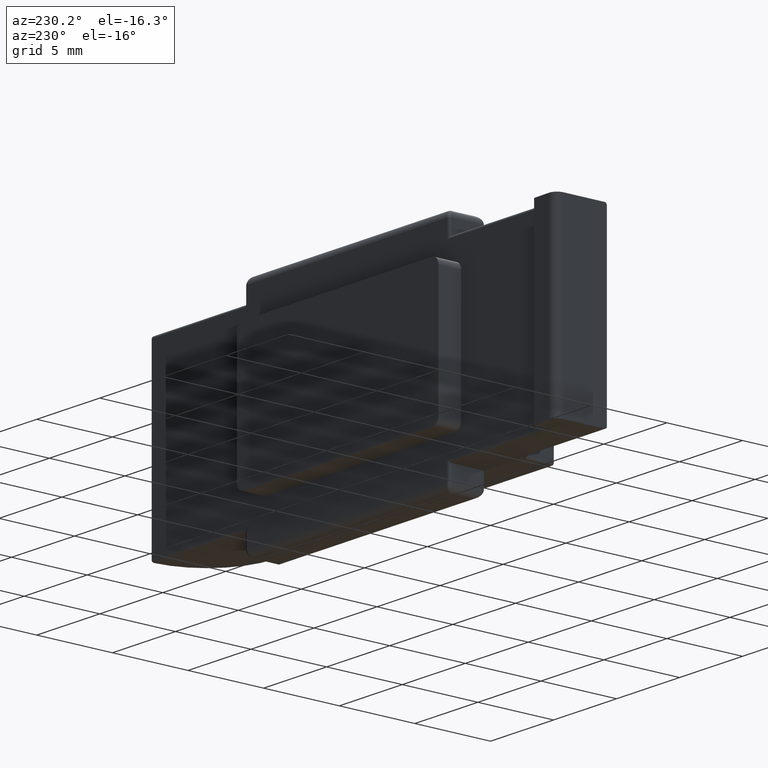
[diagram: clean part render]
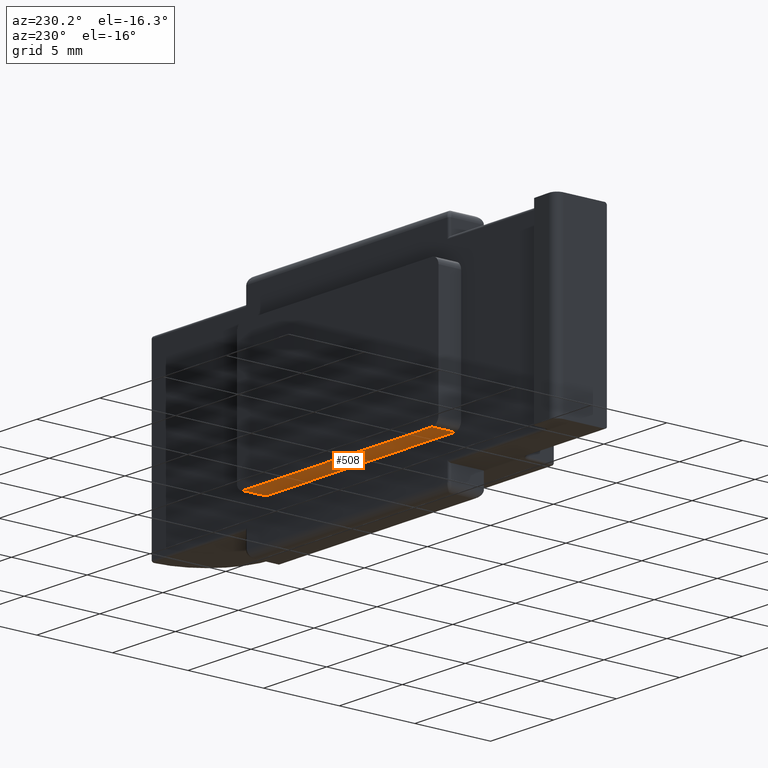
[diagram: same view with one face highlighted and labeled with its STEP entity id]
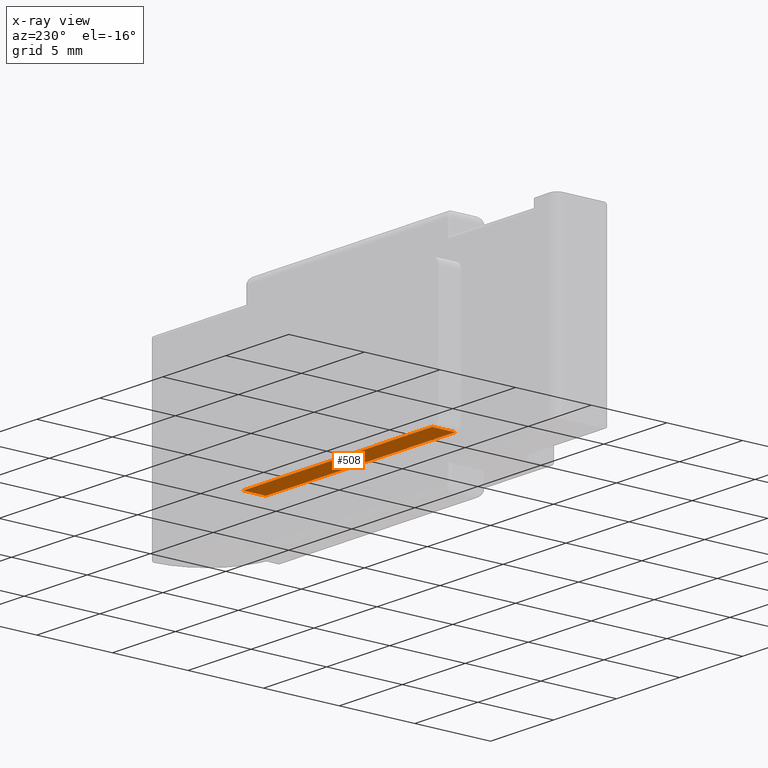
[diagram: x-ray of the same camera — body ghosted, the highlighted face saturated]
A machine part, auxiliary view. The second image highlights one B-rep face of the part: STEP entity #508.
The next image is the same camera in x-ray: the body ghosted, the highlighted face saturated — about 0% of this face is hidden behind the body in this view.
In plain terms, the highlighted planar face has unit normal (0, 0, 1).
Its self-contained STEP definition (entity closure, byte-faithful):
#18 = CARTESIAN_POINT ( 'NONE',  ( 0.000000000000000000, -0.6000000000000033085, 1.500000000000008216 ) ) ;
#28 = AXIS2_PLACEMENT_3D ( 'NONE', #1250, #1427, #1578 ) ;
#52 = CARTESIAN_POINT ( 'NONE',  ( 2.547413023856828218, -0.6000000000000033085, 1.500000000000001332 ) ) ;
#75 = VECTOR ( 'NONE', #867, 1000.000000000000000 ) ;
#198 = ORIENTED_EDGE ( 'NONE', *, *, #1057, .F. ) ;
#224 = PLANE ( 'NONE',  #28 ) ;
#287 = CARTESIAN_POINT ( 'NONE',  ( 2.547413023856831771, 0.8999999999999980238, 1.500000000000001332 ) ) ;
#508 = ADVANCED_FACE ( 'NONE', ( #545 ), #224, .F. ) ;
#523 = VERTEX_POINT ( 'NONE', #52 ) ;
#545 = FACE_OUTER_BOUND ( 'NONE', #1719, .T. ) ;
#560 = LINE ( 'NONE', #18, #1886 ) ;
#626 = CARTESIAN_POINT ( 'NONE',  ( 2.547413023856831771, 0.8999999999999980238, 1.500000000000001332 ) ) ;
#655 = LINE ( 'NONE', #1035, #1450 ) ;
#738 = ORIENTED_EDGE ( 'NONE', *, *, #2156, .T. ) ;
#767 = EDGE_CURVE ( 'NONE', #2041, #1604, #1619, .T. ) ;
#867 = DIRECTION ( 'NONE',  ( -3.446287897283861734E-18, -1.000000000000000000, 0.000000000000000000 ) ) ;
#964 = LINE ( 'NONE', #287, #1370 ) ;
#1035 = CARTESIAN_POINT ( 'NONE',  ( 3.469446951953614189E-15, 0.8999999999999980238, 1.500000000000008216 ) ) ;
#1057 = EDGE_CURVE ( 'NONE', #2041, #1903, #655, .T. ) ;
#1119 = CARTESIAN_POINT ( 'NONE',  ( 17.54741302385688684, 0.8999999999999980238, 1.500000000000001332 ) ) ;
#1142 = DIRECTION ( 'NONE',  ( 3.446287897283861734E-18, 1.000000000000000000, -0.000000000000000000 ) ) ;
#1250 = CARTESIAN_POINT ( 'NONE',  ( 3.469446951953614189E-15, 0.8999999999999980238, 1.500000000000008216 ) ) ;
#1333 = DIRECTION ( 'NONE',  ( -1.000000000000000000, 4.068560582466965989E-18, 2.168404344971007635E-16 ) ) ;
#1351 = ORIENTED_EDGE ( 'NONE', *, *, #2019, .T. ) ;
#1370 = VECTOR ( 'NONE', #1142, 1000.000000000000000 ) ;
#1427 = DIRECTION ( 'NONE',  ( 2.168404344971007635E-16, 6.162975822039132150E-33, 1.000000000000000000 ) ) ;
#1450 = VECTOR ( 'NONE', #1696, 1000.000000000000000 ) ;
#1578 = DIRECTION ( 'NONE',  ( 1.000000000000000000, 2.881723900384012195E-32, -2.168404344971007635E-16 ) ) ;
#1604 = VERTEX_POINT ( 'NONE', #1694 ) ;
#1619 = LINE ( 'NONE', #1873, #75 ) ;
#1694 = CARTESIAN_POINT ( 'NONE',  ( 17.54741302385688684, -0.5999999999999963141, 1.500000000000001332 ) ) ;
#1696 = DIRECTION ( 'NONE',  ( -1.000000000000000000, 4.068560582466965989E-18, 2.168404344971007635E-16 ) ) ;
#1719 = EDGE_LOOP ( 'NONE', ( #198, #1867, #738, #1351 ) ) ;
#1867 = ORIENTED_EDGE ( 'NONE', *, *, #767, .T. ) ;
#1873 = CARTESIAN_POINT ( 'NONE',  ( 17.54741302385688684, 0.8999999999999980238, 1.500000000000001332 ) ) ;
#1886 = VECTOR ( 'NONE', #1333, 1000.000000000000000 ) ;
#1903 = VERTEX_POINT ( 'NONE', #626 ) ;
#2019 = EDGE_CURVE ( 'NONE', #523, #1903, #964, .T. ) ;
#2041 = VERTEX_POINT ( 'NONE', #1119 ) ;
#2156 = EDGE_CURVE ( 'NONE', #1604, #523, #560, .T. ) ;